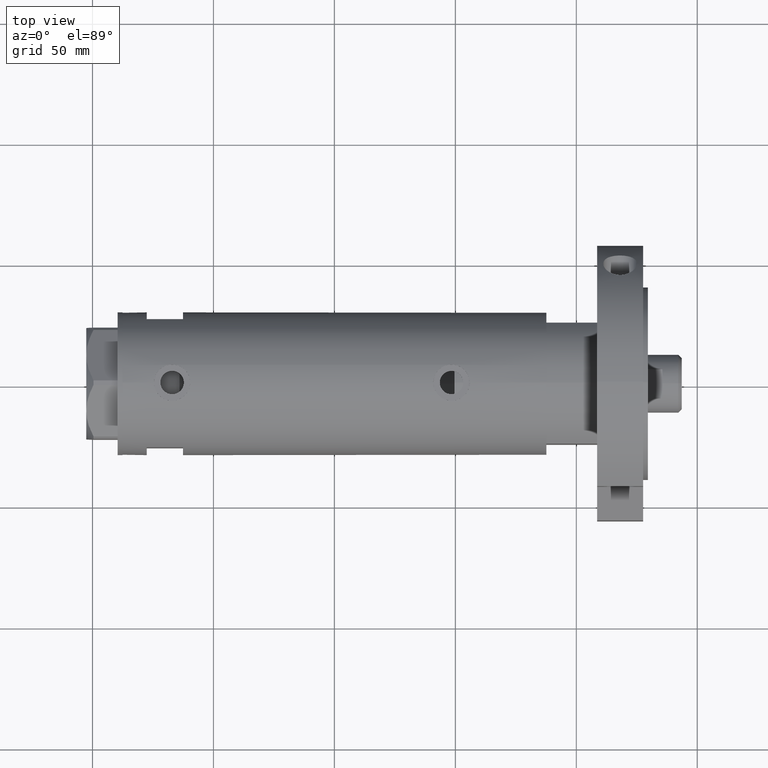
[diagram: clean part render]
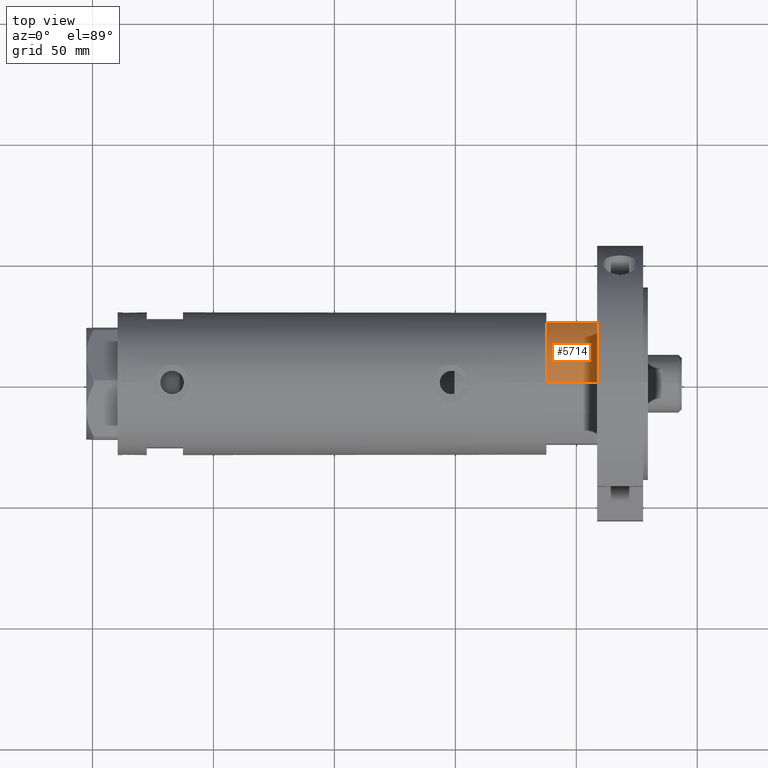
[diagram: same view with one face highlighted and labeled with its STEP entity id]
A machine part, top view. The second image highlights one B-rep face of the part: STEP entity #5714.
In plain terms, the highlighted cylindrical surface (partial cylindrical patch) has radius 29.5 mm, axis along (-1, -0, 0).
Its self-contained STEP definition (entity closure, byte-faithful):
#126 = CIRCLE ( 'NONE', #1498, 29.50000000000000355 ) ;
#415 = DIRECTION ( 'NONE',  ( -0.000000000000000000, -0.000000000000000000, -1.000000000000000000 ) ) ;
#455 = CARTESIAN_POINT ( 'NONE',  ( -29.50000000000000355, 0.000000000000000000, 0.000000000000000000 ) ) ;
#748 = CARTESIAN_POINT ( 'NONE',  ( 0.000000000000000000, 0.000000000000000000, 21.00000000000000000 ) ) ;
#876 = ORIENTED_EDGE ( 'NONE', *, *, #3744, .F. ) ;
#973 = EDGE_CURVE ( 'NONE', #1785, #2088, #7149, .T. ) ;
#1268 = AXIS2_PLACEMENT_3D ( 'NONE', #1675, #415, #4003 ) ;
#1300 = CARTESIAN_POINT ( 'NONE',  ( -29.50000000000000355, 0.000000000000000000, 21.00000000000000000 ) ) ;
#1317 = DIRECTION ( 'NONE',  ( 0.000000000000000000, 0.000000000000000000, 1.000000000000000000 ) ) ;
#1322 = CARTESIAN_POINT ( 'NONE',  ( -15.66045976336583045, 24.99999999999999645, 21.00000000000000355 ) ) ;
#1353 = DIRECTION ( 'NONE',  ( -0.000000000000000000, -0.000000000000000000, -1.000000000000000000 ) ) ;
#1486 = EDGE_CURVE ( 'NONE', #7218, #6745, #1959, .T. ) ;
#1498 = AXIS2_PLACEMENT_3D ( 'NONE', #4064, #1317, #1768 ) ;
#1675 = CARTESIAN_POINT ( 'NONE',  ( 0.000000000000000000, 0.000000000000000000, 21.00000000000000000 ) ) ;
#1768 = DIRECTION ( 'NONE',  ( 1.000000000000000000, 0.000000000000000000, 0.000000000000000000 ) ) ;
#1785 = VERTEX_POINT ( 'NONE', #1300 ) ;
#1854 = DIRECTION ( 'NONE',  ( 0.000000000000000000, 0.000000000000000000, 1.000000000000000000 ) ) ;
#1959 = LINE ( 'NONE', #6075, #5725 ) ;
#2088 = VERTEX_POINT ( 'NONE', #455 ) ;
#2655 = EDGE_CURVE ( 'NONE', #7218, #2088, #126, .T. ) ;
#2706 = EDGE_LOOP ( 'NONE', ( #7494, #876, #3301, #5028 ) ) ;
#3234 = DIRECTION ( 'NONE',  ( -0.000000000000000000, -0.000000000000000000, 1.000000000000000000 ) ) ;
#3301 = ORIENTED_EDGE ( 'NONE', *, *, #1486, .F. ) ;
#3744 = EDGE_CURVE ( 'NONE', #6745, #1785, #4150, .T. ) ;
#4003 = DIRECTION ( 'NONE',  ( -1.000000000000000000, 0.000000000000000000, 0.000000000000000000 ) ) ;
#4064 = CARTESIAN_POINT ( 'NONE',  ( 0.000000000000000000, 0.000000000000000000, 0.000000000000000000 ) ) ;
#4150 = CIRCLE ( 'NONE', #4863, 29.50000000000000355 ) ;
#4863 = AXIS2_PLACEMENT_3D ( 'NONE', #748, #1854, #6437 ) ;
#5028 = ORIENTED_EDGE ( 'NONE', *, *, #2655, .T. ) ;
#5714 = ADVANCED_FACE ( 'NONE', ( #6913 ), #6834, .T. ) ;
#5725 = VECTOR ( 'NONE', #3234, 1000.000000000000000 ) ;
#5902 = CARTESIAN_POINT ( 'NONE',  ( -15.66045976336583401, 25.00000000000000000, 0.000000000000000000 ) ) ;
#5940 = VECTOR ( 'NONE', #1353, 1000.000000000000000 ) ;
#6075 = CARTESIAN_POINT ( 'NONE',  ( -15.66045976336583401, 25.00000000000000000, 0.000000000000000000 ) ) ;
#6093 = CARTESIAN_POINT ( 'NONE',  ( -29.50000000000000355, 0.000000000000000000, 21.00000000000000000 ) ) ;
#6437 = DIRECTION ( 'NONE',  ( 1.000000000000000000, 0.000000000000000000, 0.000000000000000000 ) ) ;
#6745 = VERTEX_POINT ( 'NONE', #1322 ) ;
#6834 = CYLINDRICAL_SURFACE ( 'NONE', #1268, 29.50000000000000355 ) ;
#6913 = FACE_OUTER_BOUND ( 'NONE', #2706, .T. ) ;
#7149 = LINE ( 'NONE', #6093, #5940 ) ;
#7218 = VERTEX_POINT ( 'NONE', #5902 ) ;
#7494 = ORIENTED_EDGE ( 'NONE', *, *, #973, .F. ) ;